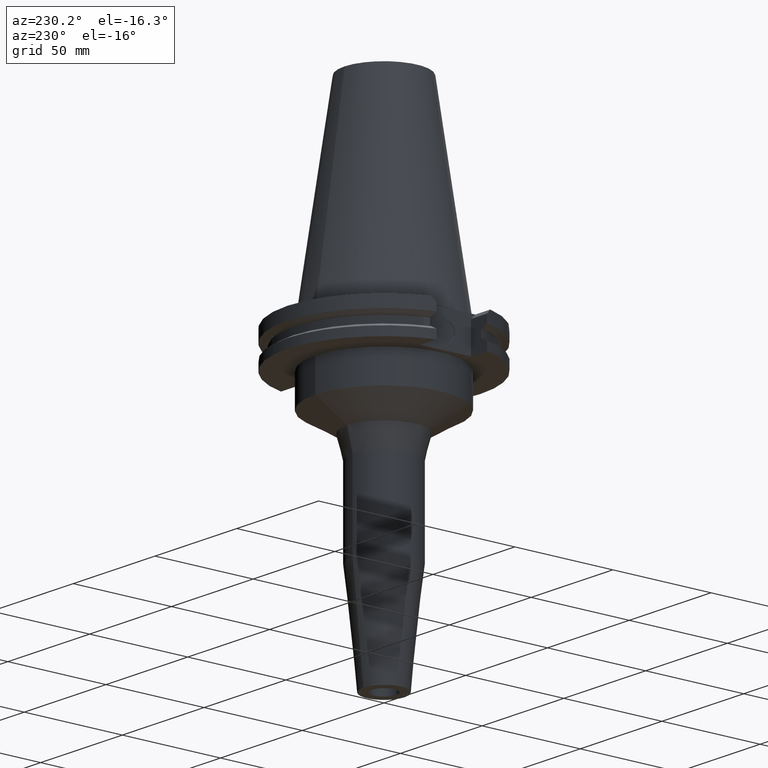
[diagram: clean part render]
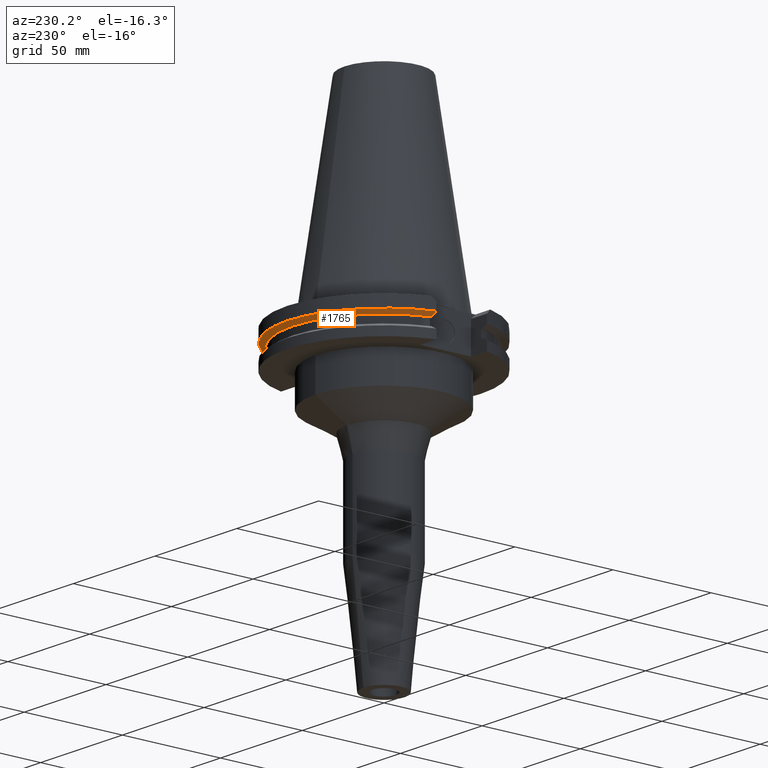
[diagram: same view with one face highlighted and labeled with its STEP entity id]
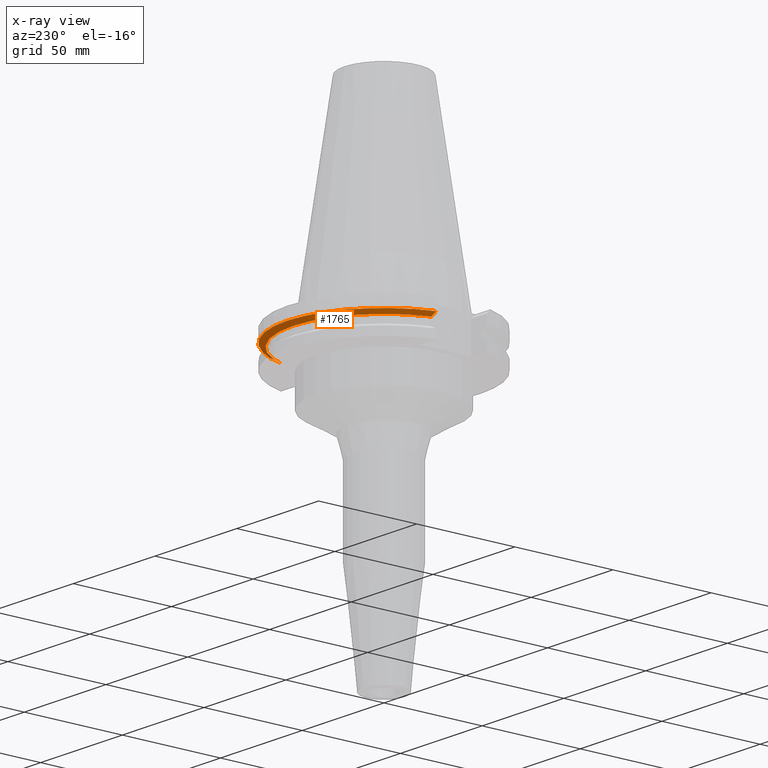
[diagram: x-ray of the same camera — body ghosted, the highlighted face saturated]
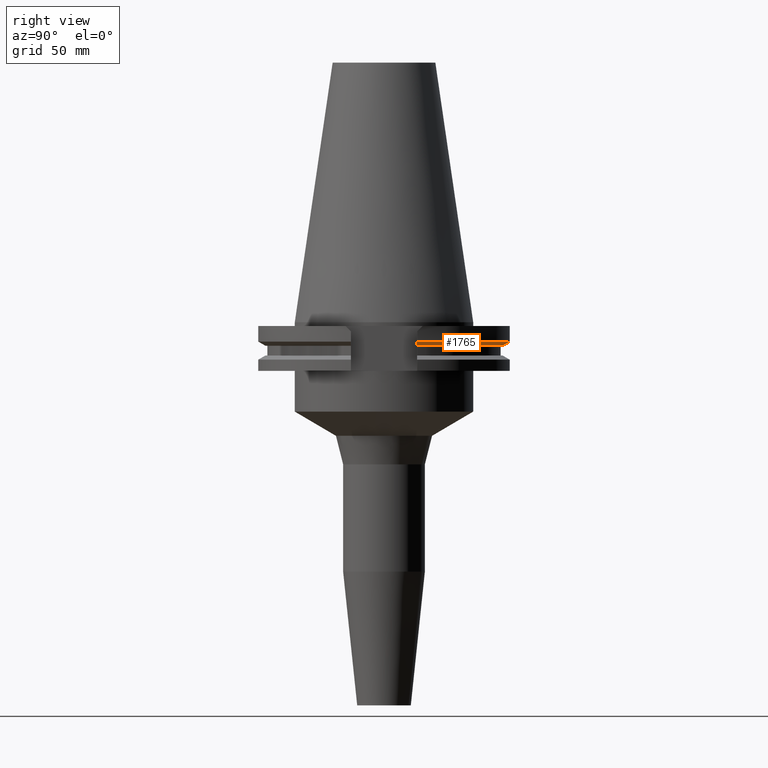
[diagram: same view with one face highlighted and labeled with its STEP entity id]
A machine part, auxiliary view. The second image highlights one B-rep face of the part: STEP entity #1765.
The next image is the same camera in x-ray: the body ghosted, the highlighted face saturated — about 1% of this face is hidden behind the body in this view.
A second angle (right view) of the same face is appended — the face is thin or edge-on in the first view.
In plain terms, the highlighted conical surface has half-angle 60 deg.
Its self-contained STEP definition (entity closure, byte-faithful):
#493=CARTESIAN_POINT('',(0.E0,0.E0,-9.207500000003E0));
#494=DIRECTION('',(0.E0,0.E0,1.E0));
#495=DIRECTION('',(9.602855947900E-1,2.790189535476E-1,0.E0));
#496=AXIS2_PLACEMENT_3D('',#493,#494,#495);
#501=CARTESIAN_POINT('',(0.E0,0.E0,-9.207500000003E0));
#502=DIRECTION('',(0.E0,0.E0,1.E0));
#503=DIRECTION('',(0.E0,1.E0,0.E0));
#504=AXIS2_PLACEMENT_3D('',#501,#502,#503);
#525=CARTESIAN_POINT('',(4.458657636813E1,1.2955E1,-9.207500000001E0));
#526=CARTESIAN_POINT('',(4.490806163993E1,1.2955E1,-9.029261766981E0));
#527=CARTESIAN_POINT('',(4.555077636711E1,1.2955E1,-8.672605903566E0));
#528=CARTESIAN_POINT('',(4.651414584907E1,1.2955E1,-8.137199213206E0));
#529=CARTESIAN_POINT('',(4.715593427837E1,1.2955E1,-7.780001752702E0));
#530=CARTESIAN_POINT('',(4.747671146204E1,1.2955E1,-7.601333230925E0));
#535=CARTESIAN_POINT('',(0.E0,0.E0,-7.601333230926E0));
#536=DIRECTION('',(0.E0,0.E0,1.E0));
#537=DIRECTION('',(9.647287063661E-1,2.632461264923E-1,0.E0));
#538=AXIS2_PLACEMENT_3D('',#535,#536,#537);
#543=CARTESIAN_POINT('',(0.E0,0.E0,-7.601333230926E0));
#544=DIRECTION('',(0.E0,0.E0,1.E0));
#545=DIRECTION('',(0.E0,1.E0,0.E0));
#546=AXIS2_PLACEMENT_3D('',#543,#544,#545);
#551=CARTESIAN_POINT('',(-4.747671146204E1,1.2955E1,-7.601333230925E0));
#552=CARTESIAN_POINT('',(-4.715593427836E1,1.2955E1,-7.780001752708E0));
#553=CARTESIAN_POINT('',(-4.651414584905E1,1.2955E1,-8.137199213222E0));
#554=CARTESIAN_POINT('',(-4.555077636708E1,1.2955E1,-8.672605903582E0));
#555=CARTESIAN_POINT('',(-4.490806163991E1,1.2955E1,-9.029261766988E0));
#556=CARTESIAN_POINT('',(-4.458657636813E1,1.2955E1,-9.207500000001E0));
#1338=CARTESIAN_POINT('',(-4.458657636813E1,1.2955E1,-9.207500000001E0));
#1339=VERTEX_POINT('',#1338);
#1340=VERTEX_POINT('',#551);
#1362=CARTESIAN_POINT('',(4.458657636813E1,1.2955E1,-9.207500000001E0));
#1363=VERTEX_POINT('',#1362);
#1364=CARTESIAN_POINT('',(3.687402563152E-14,4.643053755053E1,
-9.207500000003E0));
#1365=VERTEX_POINT('',#1364);
#1368=VERTEX_POINT('',#530);
#1369=CARTESIAN_POINT('',(0.E0,4.92125E1,-7.601333230926E0));
#1370=VERTEX_POINT('',#1369);
#1752=CARTESIAN_POINT('',(0.E0,0.E0,-8.404416615464E0));
#1753=DIRECTION('',(0.E0,0.E0,1.E0));
#1754=DIRECTION('',(0.E0,1.E0,0.E0));
#1755=AXIS2_PLACEMENT_3D('',#1752,#1753,#1754);
#1756=CONICAL_SURFACE('',#1755,4.782151877527E1,6.E1);
#1757=ORIENTED_EDGE('',*,*,#1563,.T.);
#1758=ORIENTED_EDGE('',*,*,#1606,.T.);
#1759=ORIENTED_EDGE('',*,*,#1604,.T.);
#1760=ORIENTED_EDGE('',*,*,#1664,.T.);
#1761=ORIENTED_EDGE('',*,*,#1744,.F.);
#1762=ORIENTED_EDGE('',*,*,#1742,.F.);
#1763=EDGE_LOOP('',(#1757,#1758,#1759,#1760,#1761,#1762));
#1764=FACE_OUTER_BOUND('',#1763,.F.);
#497=CIRCLE('',#496,4.643053755053E1);
#505=CIRCLE('',#504,4.643053755053E1);
#531=B_SPLINE_CURVE_WITH_KNOTS('',3,(#525,#526,#527,#528,#529,#530),
.UNSPECIFIED.,.F.,.F.,(4,1,1,4),(0.E0,3.333333333333E-1,6.666666666667E-1,1.E0),
.UNSPECIFIED.);
#539=CIRCLE('',#538,4.92125E1);
#547=CIRCLE('',#546,4.92125E1);
#557=B_SPLINE_CURVE_WITH_KNOTS('',3,(#551,#552,#553,#554,#555,#556),
.UNSPECIFIED.,.F.,.F.,(4,1,1,4),(0.E0,3.333333333333E-1,6.666666666667E-1,1.E0),
.UNSPECIFIED.);
#1563=EDGE_CURVE('',#1363,#1368,#531,.T.);
#1604=EDGE_CURVE('',#1370,#1340,#547,.T.);
#1606=EDGE_CURVE('',#1368,#1370,#539,.T.);
#1664=EDGE_CURVE('',#1340,#1339,#557,.T.);
#1742=EDGE_CURVE('',#1363,#1365,#497,.T.);
#1744=EDGE_CURVE('',#1365,#1339,#505,.T.);
#1765=ADVANCED_FACE('',(#1764),#1756,.T.);